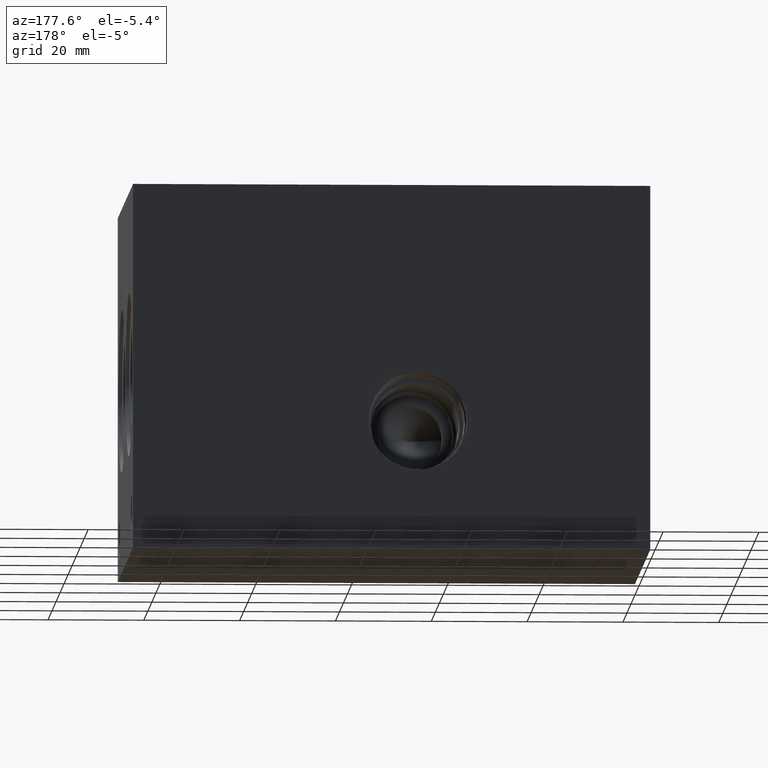
[diagram: clean part render]
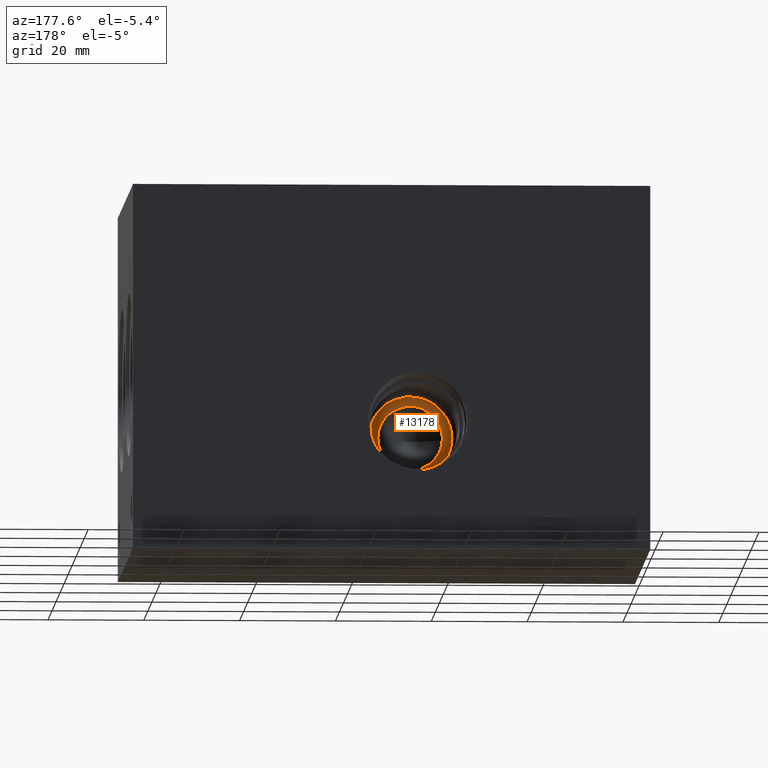
[diagram: same view with one face highlighted and labeled with its STEP entity id]
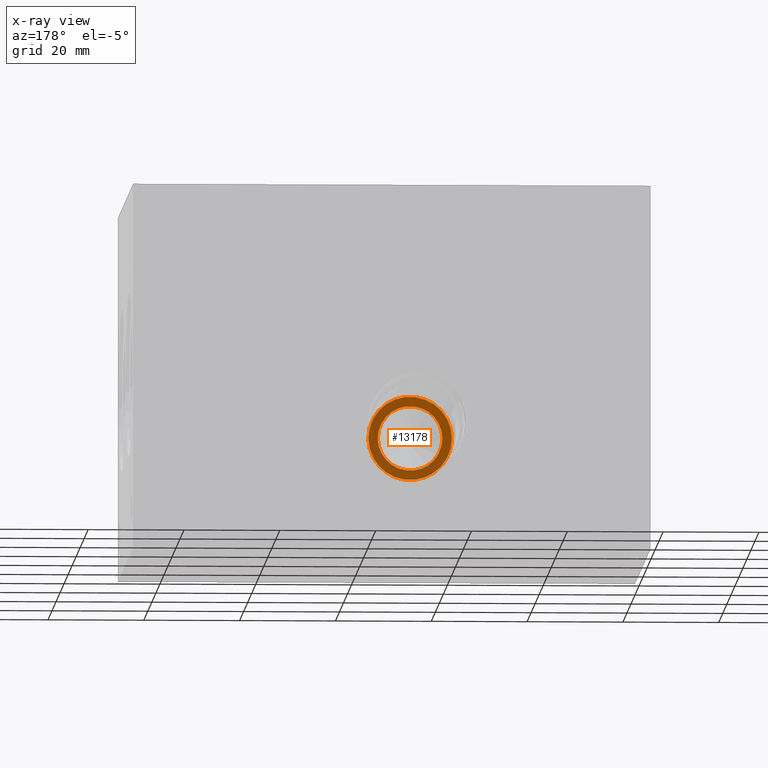
[diagram: x-ray of the same camera — body ghosted, the highlighted face saturated]
A machine part, auxiliary view. The second image highlights one B-rep face of the part: STEP entity #13178.
The next image is the same camera in x-ray: the body ghosted, the highlighted face saturated — about 36% of this face is hidden behind the body in this view.
In plain terms, the highlighted planar face has unit normal (0, -1, 0).
Its self-contained STEP definition (entity closure, byte-faithful):
#204=CIRCLE('',#13746,8.7249);
#205=CIRCLE('',#13747,8.7249);
#206=CIRCLE('',#13749,6.7437);
#207=CIRCLE('',#13750,6.7437);
#545=FACE_BOUND('',#2396,.T.);
#1644=FACE_OUTER_BOUND('',#2395,.T.);
#2395=EDGE_LOOP('',(#10924,#10925));
#2396=EDGE_LOOP('',(#10926,#10927));
#5936=VERTEX_POINT('',#22288);
#5937=VERTEX_POINT('',#22290);
#5938=VERTEX_POINT('',#22294);
#5939=VERTEX_POINT('',#22295);
#7684=EDGE_CURVE('',#5936,#5937,#204,.T.);
#7685=EDGE_CURVE('',#5937,#5936,#205,.T.);
#7686=EDGE_CURVE('',#5938,#5939,#206,.T.);
#7687=EDGE_CURVE('',#5939,#5938,#207,.T.);
#10924=ORIENTED_EDGE('',*,*,#7685,.F.);
#10925=ORIENTED_EDGE('',*,*,#7684,.F.);
#10926=ORIENTED_EDGE('',*,*,#7686,.T.);
#10927=ORIENTED_EDGE('',*,*,#7687,.T.);
#12139=PLANE('',#13748);
#13178=ADVANCED_FACE('',(#1644,#545),#12139,.F.);
#13746=AXIS2_PLACEMENT_3D('',#22291,#15994,#15995);
#13747=AXIS2_PLACEMENT_3D('',#22292,#15996,#15997);
#13748=AXIS2_PLACEMENT_3D('',#22293,#15998,#15999);
#13749=AXIS2_PLACEMENT_3D('',#22296,#16000,#16001);
#13750=AXIS2_PLACEMENT_3D('',#22297,#16002,#16003);
#15994=DIRECTION('center_axis',(0.,-1.,0.));
#15995=DIRECTION('ref_axis',(1.,0.,0.));
#15996=DIRECTION('center_axis',(0.,-1.,0.));
#15997=DIRECTION('ref_axis',(1.,0.,0.));
#15998=DIRECTION('center_axis',(0.,-1.,0.));
#15999=DIRECTION('ref_axis',(0.,0.,-1.));
#16000=DIRECTION('center_axis',(0.,-1.,0.));
#16001=DIRECTION('ref_axis',(1.,0.,0.));
#16002=DIRECTION('center_axis',(0.,-1.,0.));
#16003=DIRECTION('ref_axis',(1.,0.,0.));
#22288=CARTESIAN_POINT('',(39.6875,35.3314,26.9748));
#22290=CARTESIAN_POINT('',(57.1373,35.3314,26.9748));
#22291=CARTESIAN_POINT('Origin',(48.4124,35.3314,26.9748));
#22292=CARTESIAN_POINT('Origin',(48.4124,35.3314,26.9748));
#22293=CARTESIAN_POINT('Origin',(55.1561,35.3314,26.9748));
#22294=CARTESIAN_POINT('',(55.1561,35.3314,26.9748));
#22295=CARTESIAN_POINT('',(41.6687,35.3314,26.9748));
#22296=CARTESIAN_POINT('Origin',(48.4124,35.3314,26.9748));
#22297=CARTESIAN_POINT('Origin',(48.4124,35.3314,26.9748));